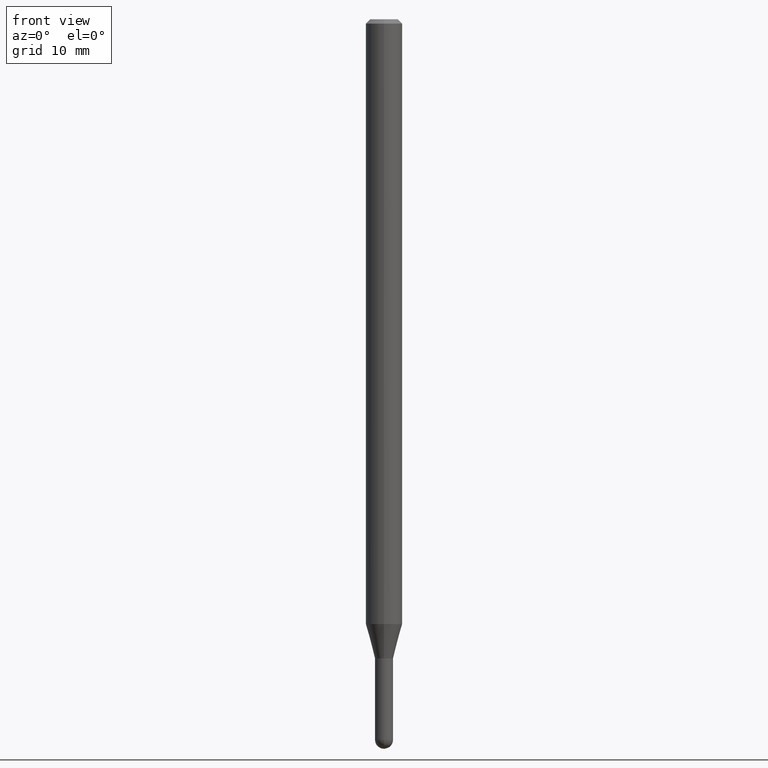
[diagram: clean part render]
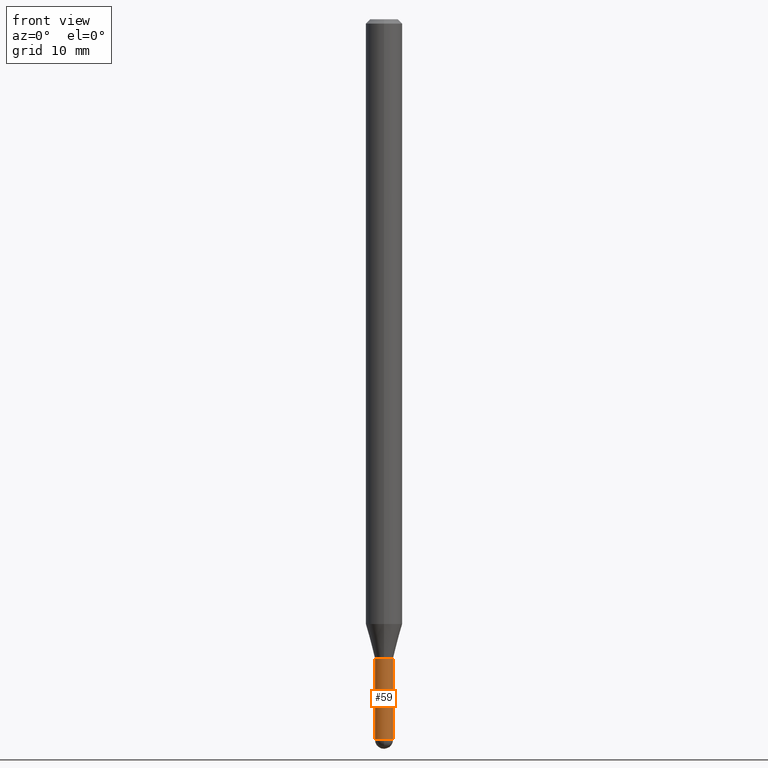
[diagram: same view with one face highlighted and labeled with its STEP entity id]
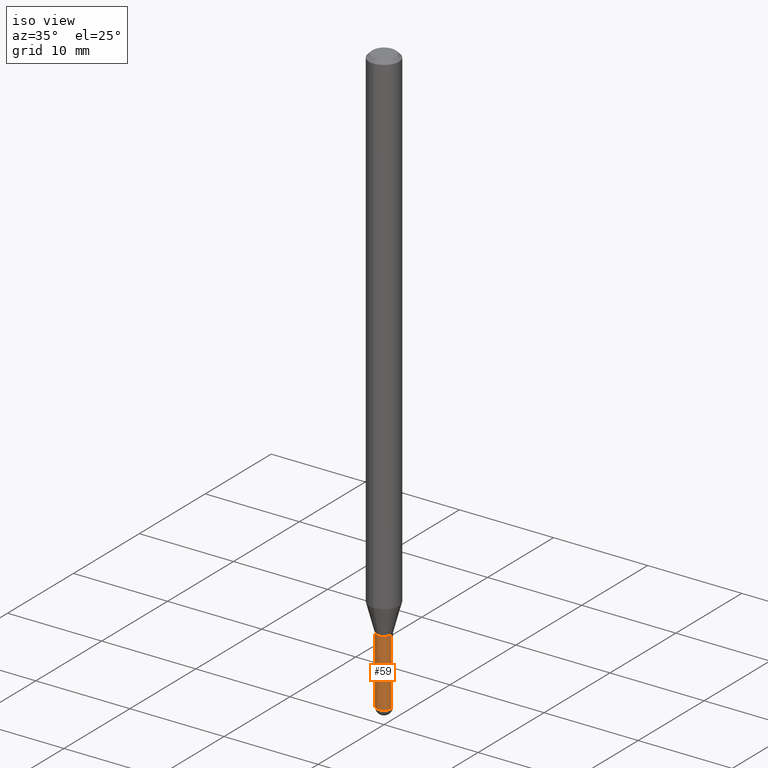
[diagram: same view with one face highlighted and labeled with its STEP entity id]
A machine part, front view. The second image highlights one B-rep face of the part: STEP entity #59.
A second angle (iso view) of the same face is appended — the face is thin or edge-on in the first view.
In plain terms, the highlighted cylindrical surface (edge-blend (fillet) strip) has radius 0.7874 mm, axis along (-0, 0, 1).
Its self-contained STEP definition (entity closure, byte-faithful):
#10 = EDGE_CURVE ( 'NONE', #117, #273, #318, .T. ) ;
#12 = DIRECTION ( 'NONE',  ( -2.445468806185136877E-29, 3.491481338843145188E-15, 1.000000000000000000 ) ) ;
#14 = AXIS2_PLACEMENT_3D ( 'NONE', #479, #321, #469 ) ;
#37 = CARTESIAN_POINT ( 'NONE',  ( -0.03099999999999999978, -7.913137530749477307E-15, -2.469000000000000306 ) ) ;
#59 = ADVANCED_FACE ( 'NONE', ( #395 ), #242, .T. ) ;
#67 = DIRECTION ( 'NONE',  ( -2.445468806185136597E-29, 3.491481338843145583E-15, 1.000000000000000000 ) ) ;
#78 = CARTESIAN_POINT ( 'NONE',  ( 0.03099999999999999978, -8.349877621843383680E-15, -2.469000000000000306 ) ) ;
#110 = VECTOR ( 'NONE', #448, 39.37007874015748143 ) ;
#117 = VERTEX_POINT ( 'NONE', #492 ) ;
#122 = EDGE_LOOP ( 'NONE', ( #228, #344, #405, #268, #327 ) ) ;
#152 = AXIS2_PLACEMENT_3D ( 'NONE', #460, #353, #401 ) ;
#168 = VERTEX_POINT ( 'NONE', #78 ) ;
#181 = CARTESIAN_POINT ( 'NONE',  ( 0.03099999999999999978, -7.862815975074762885E-15, -2.189999999999999947 ) ) ;
#183 = EDGE_CURVE ( 'NONE', #324, #168, #357, .T. ) ;
#222 = LINE ( 'NONE', #303, #110 ) ;
#228 = ORIENTED_EDGE ( 'NONE', *, *, #251, .F. ) ;
#230 = EDGE_CURVE ( 'NONE', #384, #324, #374, .T. ) ;
#232 = DIRECTION ( 'NONE',  ( 1.000000000000000000, -6.982962677686270655E-15, 0.000000000000000000 ) ) ;
#242 = CYLINDRICAL_SURFACE ( 'NONE', #152, 0.03099999999999999978 ) ;
#251 = EDGE_CURVE ( 'NONE', #384, #117, #222, .T. ) ;
#268 = ORIENTED_EDGE ( 'NONE', *, *, #449, .T. ) ;
#273 = VERTEX_POINT ( 'NONE', #181 ) ;
#277 = DIRECTION ( 'NONE',  ( -2.445468806185136597E-29, 3.491481338843145583E-15, 1.000000000000000000 ) ) ;
#298 = LINE ( 'NONE', #372, #456 ) ;
#303 = CARTESIAN_POINT ( 'NONE',  ( -0.03099999999999999978, 2.202682480856310560E-16, -1.524869877979020612E-30 ) ) ;
#318 = CIRCLE ( 'NONE', #14, 0.03099999999999999978 ) ;
#321 = DIRECTION ( 'NONE',  ( -2.445468806185136597E-29, 3.491481338843145583E-15, 1.000000000000000000 ) ) ;
#324 = VERTEX_POINT ( 'NONE', #465 ) ;
#327 = ORIENTED_EDGE ( 'NONE', *, *, #10, .F. ) ;
#344 = ORIENTED_EDGE ( 'NONE', *, *, #230, .T. ) ;
#353 = DIRECTION ( 'NONE',  ( -2.445468806185136597E-29, 3.491481338843145583E-15, 1.000000000000000000 ) ) ;
#357 = CIRCLE ( 'NONE', #398, 0.03099999999999999978 ) ;
#372 = CARTESIAN_POINT ( 'NONE',  ( 0.03099999999999999978, -2.164718430082742572E-16, 1.511614800496739984E-30 ) ) ;
#374 = CIRCLE ( 'NONE', #432, 0.03099999999999999978 ) ;
#383 = CARTESIAN_POINT ( 'NONE',  ( 6.037862482471103495E-29, -8.620467425603728566E-15, -2.469000000000000306 ) ) ;
#384 = VERTEX_POINT ( 'NONE', #37 ) ;
#395 = FACE_OUTER_BOUND ( 'NONE', #122, .T. ) ;
#398 = AXIS2_PLACEMENT_3D ( 'NONE', #435, #277, #467 ) ;
#401 = DIRECTION ( 'NONE',  ( 1.000000000000000000, -6.982962677686266711E-15, 4.876176775795935232E-29 ) ) ;
#405 = ORIENTED_EDGE ( 'NONE', *, *, #183, .T. ) ;
#432 = AXIS2_PLACEMENT_3D ( 'NONE', #383, #67, #232 ) ;
#435 = CARTESIAN_POINT ( 'NONE',  ( 6.037862482471103495E-29, -8.620467425603728566E-15, -2.469000000000000306 ) ) ;
#448 = DIRECTION ( 'NONE',  ( -2.445468806185136877E-29, 3.491481338843145188E-15, 1.000000000000000000 ) ) ;
#449 = EDGE_CURVE ( 'NONE', #168, #273, #298, .T. ) ;
#456 = VECTOR ( 'NONE', #12, 39.37007874015748143 ) ;
#460 = CARTESIAN_POINT ( 'NONE',  ( 0.000000000000000000, 0.000000000000000000, 0.000000000000000000 ) ) ;
#465 = CARTESIAN_POINT ( 'NONE',  ( -2.202682480855702151E-16, -0.03100000000000856237, -2.469000000000000306 ) ) ;
#467 = DIRECTION ( 'NONE',  ( 1.000000000000000000, -6.982962677686270655E-15, 0.000000000000000000 ) ) ;
#469 = DIRECTION ( 'NONE',  ( 1.000000000000000000, -6.982962677686270655E-15, 0.000000000000000000 ) ) ;
#479 = CARTESIAN_POINT ( 'NONE',  ( 5.355576685545449192E-29, -7.646344132066488554E-15, -2.189999999999999947 ) ) ;
#492 = CARTESIAN_POINT ( 'NONE',  ( -0.03099999999999999978, -7.913137530749477307E-15, -2.189999999999999947 ) ) ;